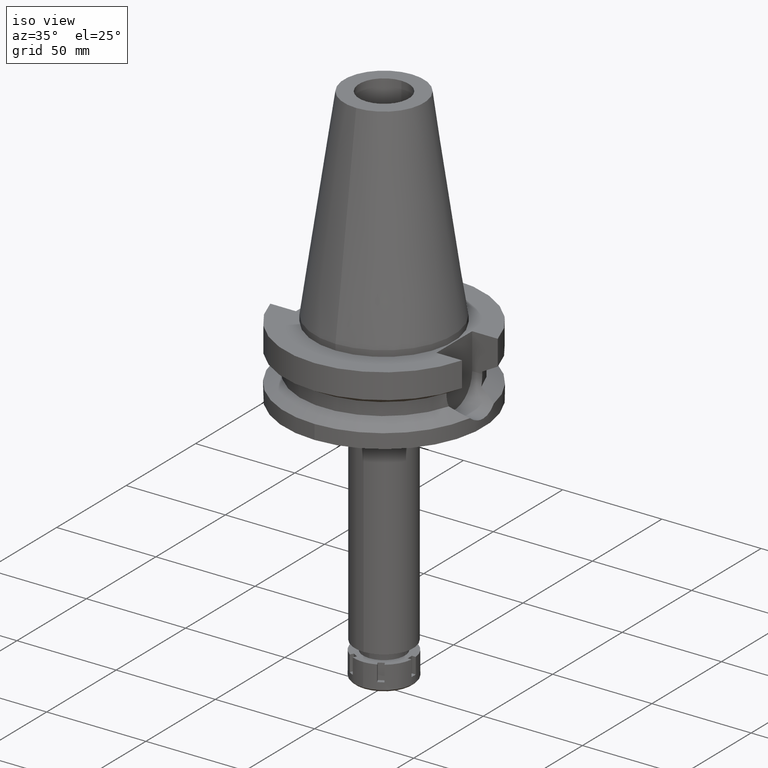
[diagram: clean part render]
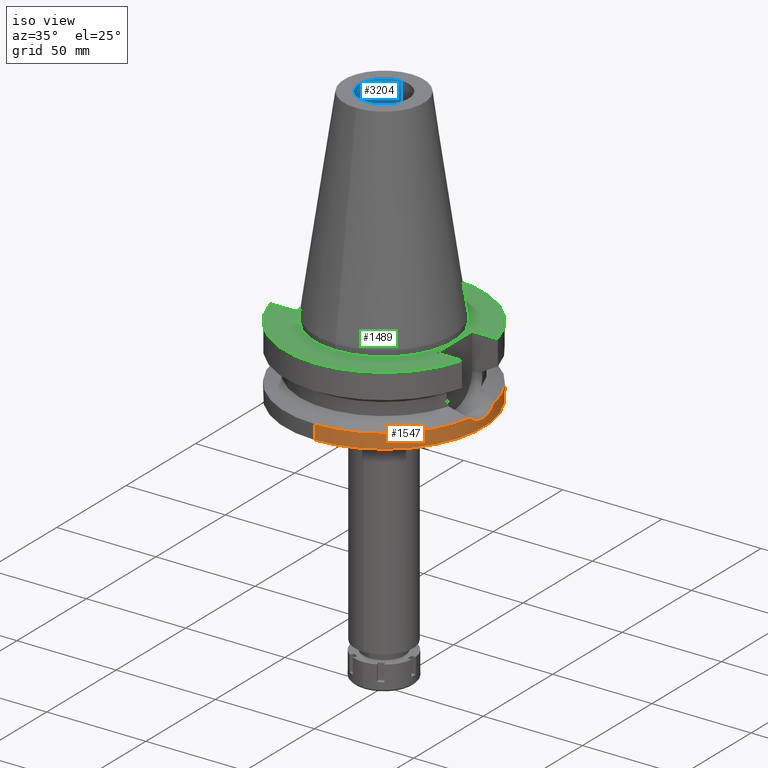
[diagram: same view with three faces highlighted in distinct colors, each labeled with its STEP entity id]
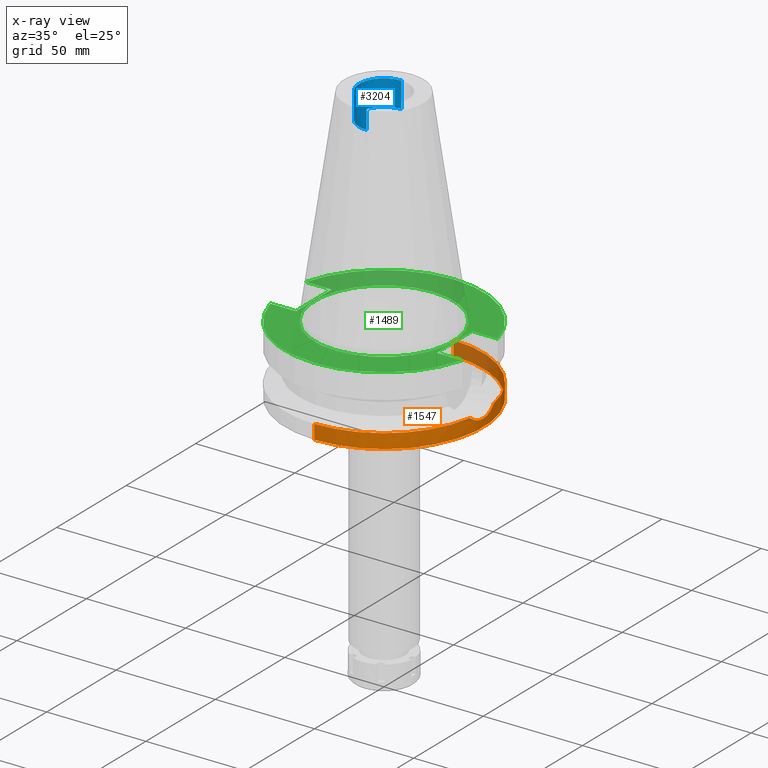
[diagram: x-ray of the same camera — body ghosted, the three highlighted faces saturated]
A machine part, iso view with three faces highlighted in distinct colors.
The next image is the same camera in x-ray (body ghosted, the three faces saturated) — at least one of them is partly hidden behind the body in this view.
Their STEP definitions:

[orange] entity #1547 — the highlighted cylindrical surface (partial cylindrical patch) has radius 50 mm, axis along (0, 0, -1).
#94 = CARTESIAN_POINT ( 'NONE',  ( 49.71771244292357039, -5.301720186252013356, -32.85659238557647654 ) ) ;
#116 = CARTESIAN_POINT ( 'NONE',  ( 49.91305551307290500, -3.031270825999984098, -33.66153124158559251 ) ) ;
#155 = CARTESIAN_POINT ( 'NONE',  ( 49.93043543702998477, 2.648726358274579251, -33.73005955329998784 ) ) ;
#178 = CARTESIAN_POINT ( 'NONE',  ( 49.73972721065732827, 5.127761864090552457, -32.94800215667580545 ) ) ;
#288 = ORIENTED_EDGE ( 'NONE', *, *, #2325, .T. ) ;
#289 = EDGE_CURVE ( 'NONE', #708, #1937, #3385, .T. ) ;
#294 = AXIS2_PLACEMENT_3D ( 'NONE', #701, #1258, #638 ) ;
#391 = CARTESIAN_POINT ( 'NONE',  ( 49.49360244400352116, 7.117060692954189527, -31.87766899477913896 ) ) ;
#439 = CARTESIAN_POINT ( 'NONE',  ( 49.79078946305826037, -4.569185635567727388, -33.16020745300443906 ) ) ;
#444 = CARTESIAN_POINT ( 'NONE',  ( 49.79347438492522571, 4.539752812130764426, -33.17136368397744661 ) ) ;
#527 = CARTESIAN_POINT ( 'NONE',  ( 49.26250064874000145, -8.556052234130000045, -30.73730776426999967 ) ) ;
#551 = EDGE_CURVE ( 'NONE', #708, #3455, #3193, .T. ) ;
#553 = CYLINDRICAL_SURFACE ( 'NONE', #983, 50.00000000000000000 ) ;
#576 = B_SPLINE_CURVE_WITH_KNOTS ( 'NONE', 3,
 ( #1602, #2950, #2706, #155, #954, #1285, #2082, #2443, #3232, #3530, #3009, #444, #1583, #2729, #178, #1302, #391, #3589, #1027 ),
 .UNSPECIFIED., .F., .F.,
 ( 4, 2, 2, 1, 1, 1, 1, 1, 2, 2, 2, 4 ),
 ( 0.0000000000000000000, 0.2500000000000198175, 0.3750000000000297540, 0.4375000000000344724, 0.4687500000000369149, 0.4843750000000381917, 0.4921875000000385803, 0.4960937500000385247, 0.4980468750000389688, 0.5000000000000394129, 0.7500000000000196509, 1.000000000000000000 ),
 .UNSPECIFIED. ) ;
#638 = DIRECTION ( 'NONE',  ( 0.0000000000000000000, 1.000000000000000000, 0.0000000000000000000 ) ) ;
#641 = CARTESIAN_POINT ( 'NONE',  ( 49.26250064874000145, -8.556052234130000045, -30.73730776426999967 ) ) ;
#655 = EDGE_CURVE ( 'NONE', #1737, #2283, #3272, .T. ) ;
#701 = CARTESIAN_POINT ( 'NONE',  ( 0.0000000000000000000, 0.0000000000000000000, -30.73730776426999967 ) ) ;
#708 = VERTEX_POINT ( 'NONE', #527 ) ;
#717 = DIRECTION ( 'NONE',  ( 0.0000000000000000000, 0.0000000000000000000, -1.000000000000000000 ) ) ;
#720 = CARTESIAN_POINT ( 'NONE',  ( 49.79052572488907202, -4.572062755264606260, -33.15911172846967503 ) ) ;
#790 = ORIENTED_EDGE ( 'NONE', *, *, #970, .T. ) ;
#807 = AXIS2_PLACEMENT_3D ( 'NONE', #3078, #3110, #3355 ) ;
#841 = ORIENTED_EDGE ( 'NONE', *, *, #551, .F. ) ;
#950 = CARTESIAN_POINT ( 'NONE',  ( 49.73403571962806780, -5.148397096191286160, -32.92466732353829428 ) ) ;
#954 = CARTESIAN_POINT ( 'NONE',  ( 49.90869642992999644, 3.032807478422463454, -33.64331436793084151 ) ) ;
#964 = CARTESIAN_POINT ( 'NONE',  ( 50.00000025974999573, 1.774451979625000049E-14, -34.00000114470000057 ) ) ;
#970 = EDGE_CURVE ( 'NONE', #1737, #1160, #3036, .T. ) ;
#982 = CARTESIAN_POINT ( 'NONE',  ( 49.77979861141895412, -4.687619707991414586, -33.11458520036079278 ) ) ;
#983 = AXIS2_PLACEMENT_3D ( 'NONE', #2841, #2287, #2896 ) ;
#1007 = CARTESIAN_POINT ( 'NONE',  ( 49.78849615496912406, -4.594160770977660846, -33.15068097425570670 ) ) ;
#1013 = CARTESIAN_POINT ( 'NONE',  ( 50.00000025974999573, 1.774451979625000049E-14, -34.00000114470000057 ) ) ;
#1027 = CARTESIAN_POINT ( 'NONE',  ( 49.26250064874000145, 8.556052234130000045, -30.73730776426999967 ) ) ;
#1105 = VECTOR ( 'NONE', #3488, 1000.000000000000000 ) ;
#1129 = ORIENTED_EDGE ( 'NONE', *, *, #655, .F. ) ;
#1153 = CARTESIAN_POINT ( 'NONE',  ( 49.75680721495889003, -4.924372199833143782, -33.01927248181322483 ) ) ;
#1160 = VERTEX_POINT ( 'NONE', #3287 ) ;
#1238 = VECTOR ( 'NONE', #3416, 1000.000000000000000 ) ;
#1258 = DIRECTION ( 'NONE',  ( 0.0000000000000000000, 0.0000000000000000000, -1.000000000000000000 ) ) ;
#1282 = CIRCLE ( 'NONE', #807, 50.00000000000000000 ) ;
#1285 = CARTESIAN_POINT ( 'NONE',  ( 49.86956621714999471, 3.608177968032164173, -33.48463145072798142 ) ) ;
#1302 = CARTESIAN_POINT ( 'NONE',  ( 49.66987082495349881, 5.762061219469008400, -32.66234491629879955 ) ) ;
#1506 = CARTESIAN_POINT ( 'NONE',  ( 49.38719230605794053, -7.838125007729566995, -31.37801139039975240 ) ) ;
#1544 = CARTESIAN_POINT ( 'NONE',  ( 0.0000000000000000000, 50.00000000000000000, -30.73730776426999967 ) ) ;
#1547 = ADVANCED_FACE ( 'NONE', ( #2266 ), #553, .T. ) ;
#1558 = CARTESIAN_POINT ( 'NONE',  ( 49.76776460769280419, -4.813848196673922608, -33.06469792036553201 ) ) ;
#1578 = CARTESIAN_POINT ( 'NONE',  ( 49.78562820799949407, -4.625197376495398416, -33.13877319686930889 ) ) ;
#1583 = CARTESIAN_POINT ( 'NONE',  ( 49.79239168047003972, 4.551645640503458878, -33.16686574698189816 ) ) ;
#1602 = CARTESIAN_POINT ( 'NONE',  ( 50.00000025974999573, 1.774451979625000049E-14, -34.00000114470000057 ) ) ;
#1691 = EDGE_LOOP ( 'NONE', ( #1951, #3407, #288, #1129, #790, #2940, #841 ) ) ;
#1737 = VERTEX_POINT ( 'NONE', #1544 ) ;
#1785 = CARTESIAN_POINT ( 'NONE',  ( 49.49360748629898410, -7.117022365436703524, -31.87769826661790518 ) ) ;
#1821 = CARTESIAN_POINT ( 'NONE',  ( 49.86088866506666051, -3.802344463858726709, -33.45151161024440256 ) ) ;
#1870 = CARTESIAN_POINT ( 'NONE',  ( 0.0000000000000000000, 50.00000000000000000, -38.00000000000000000 ) ) ;
#1937 = VERTEX_POINT ( 'NONE', #2743 ) ;
#1951 = ORIENTED_EDGE ( 'NONE', *, *, #289, .T. ) ;
#2082 = CARTESIAN_POINT ( 'NONE',  ( 49.84837068522751480, 3.895670753226831984, -33.39815263650996258 ) ) ;
#2086 = CARTESIAN_POINT ( 'NONE',  ( 0.0000000000000000000, -50.00000000000000000, -30.73730776426999967 ) ) ;
#2128 = CARTESIAN_POINT ( 'NONE',  ( 0.0000000000000000000, -50.00000000000000000, -38.00000000000000000 ) ) ;
#2266 = FACE_OUTER_BOUND ( 'NONE', #1691, .T. ) ;
#2283 = VERTEX_POINT ( 'NONE', #1870 ) ;
#2287 = DIRECTION ( 'NONE',  ( 0.0000000000000000000, 0.0000000000000000000, -1.000000000000000000 ) ) ;
#2325 = EDGE_CURVE ( 'NONE', #2629, #2283, #1282, .T. ) ;
#2379 = CARTESIAN_POINT ( 'NONE',  ( 49.98261131041458327, -1.500624885528581753, -33.93573978237721889 ) ) ;
#2443 = CARTESIAN_POINT ( 'NONE',  ( 49.82078931996937854, 4.230072290319100148, -33.28453423727673766 ) ) ;
#2451 = EDGE_CURVE ( 'NONE', #1937, #2629, #3506, .T. ) ;
#2580 = CARTESIAN_POINT ( 'NONE',  ( 49.62581554104523462, -6.100699782143618854, -32.46623685376827950 ) ) ;
#2629 = VERTEX_POINT ( 'NONE', #2128 ) ;
#2650 = CARTESIAN_POINT ( 'NONE',  ( 49.66531577335810965, -5.772453007793217239, -32.63570655790127972 ) ) ;
#2706 = CARTESIAN_POINT ( 'NONE',  ( 49.98260905406998234, 1.500665618325508266, -33.93573820490425419 ) ) ;
#2729 = CARTESIAN_POINT ( 'NONE',  ( 49.79170874925353729, 4.559128567783154118, -33.16402800634843828 ) ) ;
#2741 = CARTESIAN_POINT ( 'NONE',  ( 50.00000025974998863, -0.7410656244436363282, -33.99999999999998579 ) ) ;
#2743 = CARTESIAN_POINT ( 'NONE',  ( 0.0000000000000000000, -50.00000000000000000, -30.73730776426999967 ) ) ;
#2789 = AXIS2_PLACEMENT_3D ( 'NONE', #3266, #717, #3243 ) ;
#2833 = CARTESIAN_POINT ( 'NONE',  ( 0.0000000000000000000, 50.00000000000000000, -30.73730776426999967 ) ) ;
#2841 = CARTESIAN_POINT ( 'NONE',  ( 0.0000000000000000000, 2.630418859888999601E-14, 114.7900000000000063 ) ) ;
#2896 = DIRECTION ( 'NONE',  ( 0.0000000000000000000, -1.000000000000000000, 0.0000000000000000000 ) ) ;
#2940 = ORIENTED_EDGE ( 'NONE', *, *, #3186, .F. ) ;
#2950 = CARTESIAN_POINT ( 'NONE',  ( 50.00000025975000284, 0.7410749813100161454, -33.99999999999998579 ) ) ;
#3004 = CARTESIAN_POINT ( 'NONE',  ( 49.78971523553028078, -4.580896940909937598, -33.15574469001020930 ) ) ;
#3009 = CARTESIAN_POINT ( 'NONE',  ( 49.79509525718311380, 4.521911686831286303, -33.17809616900307645 ) ) ;
#3036 = CIRCLE ( 'NONE', #294, 50.00000000000000000 ) ;
#3078 = CARTESIAN_POINT ( 'NONE',  ( 0.0000000000000000000, 2.630418859888999601E-14, -38.00000000000000000 ) ) ;
#3110 = DIRECTION ( 'NONE',  ( 0.0000000000000000000, 0.0000000000000000000, 1.000000000000000000 ) ) ;
#3186 = EDGE_CURVE ( 'NONE', #3455, #1160, #576, .T. ) ;
#3193 = B_SPLINE_CURVE_WITH_KNOTS ( 'NONE', 3,
 ( #641, #1506, #1785, #2580, #2650, #94, #950, #1153, #1558, #982, #1578, #1007, #3004, #720, #439, #1821, #116, #2379, #2741, #964 ),
 .UNSPECIFIED., .F., .F.,
 ( 4, 2, 2, 2, 1, 1, 1, 1, 2, 2, 2, 4 ),
 ( 0.0000000000000000000, 0.2500000000000148770, 0.3750000000000223155, 0.4375000000000253686, 0.4687500000000265898, 0.4843750000000270894, 0.4921875000000273670, 0.4960937500000274780, 0.4980468750000278666, 0.5000000000000281997, 0.7500000000000140998, 1.000000000000000000 ),
 .UNSPECIFIED. ) ;
#3232 = CARTESIAN_POINT ( 'NONE',  ( 49.80628532616984216, 4.396934166487986850, -33.22451764732728918 ) ) ;
#3243 = DIRECTION ( 'NONE',  ( 0.9852500129747439050, -0.1711210446826074982, 0.0000000000000000000 ) ) ;
#3266 = CARTESIAN_POINT ( 'NONE',  ( 0.0000000000000000000, 0.0000000000000000000, -30.73730776426999967 ) ) ;
#3272 = LINE ( 'NONE', #2833, #1238 ) ;
#3287 = CARTESIAN_POINT ( 'NONE',  ( 49.26250064874000145, 8.556052234130000045, -30.73730776426999967 ) ) ;
#3355 = DIRECTION ( 'NONE',  ( 0.0000000000000000000, -1.000000000000000000, 0.0000000000000000000 ) ) ;
#3385 = CIRCLE ( 'NONE', #2789, 50.00000000000000000 ) ;
#3407 = ORIENTED_EDGE ( 'NONE', *, *, #2451, .T. ) ;
#3416 = DIRECTION ( 'NONE',  ( 0.0000000000000000000, 2.152361642122000014E-14, -1.000000000000000000 ) ) ;
#3455 = VERTEX_POINT ( 'NONE', #1013 ) ;
#3488 = DIRECTION ( 'NONE',  ( 0.0000000000000000000, -2.250196262218999978E-14, -1.000000000000000000 ) ) ;
#3506 = LINE ( 'NONE', #2086, #1105 ) ;
#3530 = CARTESIAN_POINT ( 'NONE',  ( 49.79885500147747024, 4.480269389548984904, -33.19370440295170255 ) ) ;
#3589 = CARTESIAN_POINT ( 'NONE',  ( 49.38719044875733744, 7.838135701349809636, -31.37800184703518624 ) ) ;

[blue] entity #3204 — the highlighted cylindrical surface (edge-blend (fillet) strip) has radius 12.5 mm, axis along (0, 0, -1).
#154 = EDGE_CURVE ( 'NONE', #2496, #2506, #1108, .T. ) ;
#205 = CARTESIAN_POINT ( 'NONE',  ( 0.0000000000000000000, -12.50000000000000000, 88.79999999999999716 ) ) ;
#266 = ORIENTED_EDGE ( 'NONE', *, *, #154, .T. ) ;
#440 = DIRECTION ( 'NONE',  ( 0.0000000000000000000, 0.0000000000000000000, -1.000000000000000000 ) ) ;
#521 = ORIENTED_EDGE ( 'NONE', *, *, #1076, .T. ) ;
#608 = EDGE_LOOP ( 'NONE', ( #266, #1591, #521, #2581 ) ) ;
#664 = CARTESIAN_POINT ( 'NONE',  ( 0.0000000000000000000, -12.50000000000000000, 88.79999999999999716 ) ) ;
#771 = DIRECTION ( 'NONE',  ( 0.0000000000000000000, 0.0000000000000000000, 1.000000000000000000 ) ) ;
#1041 = CARTESIAN_POINT ( 'NONE',  ( 0.0000000000000000000, 2.630418859888999601E-14, 88.79999999999999716 ) ) ;
#1076 = EDGE_CURVE ( 'NONE', #3202, #2528, #3614, .T. ) ;
#1108 = CIRCLE ( 'NONE', #2668, 12.50000000000000000 ) ;
#1186 = CARTESIAN_POINT ( 'NONE',  ( 0.0000000000000000000, -12.50000000000000000, 101.7999999999999972 ) ) ;
#1191 = CARTESIAN_POINT ( 'NONE',  ( 0.0000000000000000000, 2.630418859888999601E-14, 101.7999999999999972 ) ) ;
#1232 = VECTOR ( 'NONE', #771, 1000.000000000000000 ) ;
#1249 = CYLINDRICAL_SURFACE ( 'NONE', #2960, 12.50000000000000000 ) ;
#1308 = CARTESIAN_POINT ( 'NONE',  ( 0.0000000000000000000, 12.50000000000000000, 88.79999999999999716 ) ) ;
#1371 = DIRECTION ( 'NONE',  ( 0.0000000000000000000, -1.000000000000000000, 0.0000000000000000000 ) ) ;
#1531 = FACE_OUTER_BOUND ( 'NONE', #608, .T. ) ;
#1591 = ORIENTED_EDGE ( 'NONE', *, *, #2708, .F. ) ;
#1616 = CARTESIAN_POINT ( 'NONE',  ( 0.0000000000000000000, 2.630418859888999601E-14, 114.7900000000000063 ) ) ;
#1867 = LINE ( 'NONE', #1308, #1885 ) ;
#1885 = VECTOR ( 'NONE', #2449, 1000.000000000000000 ) ;
#2058 = DIRECTION ( 'NONE',  ( 0.0000000000000000000, 0.0000000000000000000, 1.000000000000000000 ) ) ;
#2449 = DIRECTION ( 'NONE',  ( 0.0000000000000000000, 0.0000000000000000000, 1.000000000000000000 ) ) ;
#2466 = DIRECTION ( 'NONE',  ( 0.0000000000000000000, -1.000000000000000000, 0.0000000000000000000 ) ) ;
#2496 = VERTEX_POINT ( 'NONE', #2611 ) ;
#2506 = VERTEX_POINT ( 'NONE', #1186 ) ;
#2528 = VERTEX_POINT ( 'NONE', #3015 ) ;
#2581 = ORIENTED_EDGE ( 'NONE', *, *, #2664, .T. ) ;
#2611 = CARTESIAN_POINT ( 'NONE',  ( 0.0000000000000000000, 12.50000000000000000, 101.7999999999999972 ) ) ;
#2664 = EDGE_CURVE ( 'NONE', #2528, #2496, #1867, .T. ) ;
#2668 = AXIS2_PLACEMENT_3D ( 'NONE', #1191, #2058, #3209 ) ;
#2708 = EDGE_CURVE ( 'NONE', #3202, #2506, #2792, .T. ) ;
#2792 = LINE ( 'NONE', #205, #1232 ) ;
#2960 = AXIS2_PLACEMENT_3D ( 'NONE', #1616, #3608, #2466 ) ;
#3015 = CARTESIAN_POINT ( 'NONE',  ( 0.0000000000000000000, 12.50000000000000000, 88.79999999999999716 ) ) ;
#3202 = VERTEX_POINT ( 'NONE', #664 ) ;
#3204 = ADVANCED_FACE ( 'NONE', ( #1531 ), #1249, .F. ) ;
#3209 = DIRECTION ( 'NONE',  ( 0.0000000000000000000, 1.000000000000000000, 0.0000000000000000000 ) ) ;
#3252 = AXIS2_PLACEMENT_3D ( 'NONE', #1041, #440, #1371 ) ;
#3608 = DIRECTION ( 'NONE',  ( 0.0000000000000000000, 0.0000000000000000000, -1.000000000000000000 ) ) ;
#3614 = CIRCLE ( 'NONE', #3252, 12.50000000000000000 ) ;

[green] entity #1489 — the highlighted planar face has unit normal (0, 0, -1).
#13 = DIRECTION ( 'NONE',  ( -1.000000000000000000, 0.0000000000000000000, 0.0000000000000000000 ) ) ;
#30 = EDGE_CURVE ( 'NONE', #1956, #1899, #2003, .T. ) ;
#151 = CARTESIAN_POINT ( 'NONE',  ( 0.0000000000000000000, 2.630418859888999601E-14, -3.000000000000000000 ) ) ;
#163 = CARTESIAN_POINT ( 'NONE',  ( -48.32057015392000210, 12.84999999999999964, -3.000000000000000000 ) ) ;
#186 = CARTESIAN_POINT ( 'NONE',  ( 35.39999999999999858, 12.84999999999999964, -3.000000000000000000 ) ) ;
#190 = DIRECTION ( 'NONE',  ( 0.0000000000000000000, 0.0000000000000000000, -1.000000000000000000 ) ) ;
#324 = CARTESIAN_POINT ( 'NONE',  ( -48.32057015392000210, -12.84999999999999964, -3.000000000000000000 ) ) ;
#341 = VECTOR ( 'NONE', #3470, 1000.000000000000000 ) ;
#377 = DIRECTION ( 'NONE',  ( 1.000000000000000000, 0.0000000000000000000, 0.0000000000000000000 ) ) ;
#502 = ORIENTED_EDGE ( 'NONE', *, *, #2425, .T. ) ;
#508 = DIRECTION ( 'NONE',  ( 0.0000000000000000000, -1.000000000000000000, 0.0000000000000000000 ) ) ;
#518 = FACE_BOUND ( 'NONE', #1102, .T. ) ;
#520 = ORIENTED_EDGE ( 'NONE', *, *, #2290, .F. ) ;
#547 = VERTEX_POINT ( 'NONE', #1750 ) ;
#564 = EDGE_CURVE ( 'NONE', #547, #1561, #2182, .T. ) ;
#613 = VERTEX_POINT ( 'NONE', #1876 ) ;
#675 = CIRCLE ( 'NONE', #2220, 34.92499999999999716 ) ;
#784 = ORIENTED_EDGE ( 'NONE', *, *, #2076, .F. ) ;
#918 = CARTESIAN_POINT ( 'NONE',  ( 35.39999999999999858, 12.84999999999999964, -3.000000000000000000 ) ) ;
#928 = CARTESIAN_POINT ( 'NONE',  ( 0.0000000000000000000, 2.630418859888999601E-14, -3.000000000000000000 ) ) ;
#941 = LINE ( 'NONE', #2591, #2720 ) ;
#942 = AXIS2_PLACEMENT_3D ( 'NONE', #928, #2682, #2060 ) ;
#948 = EDGE_CURVE ( 'NONE', #2593, #613, #2558, .T. ) ;
#1037 = DIRECTION ( 'NONE',  ( 0.0000000000000000000, -1.000000000000000000, 0.0000000000000000000 ) ) ;
#1097 = DIRECTION ( 'NONE',  ( 0.0000000000000000000, -1.000000000000000000, 0.0000000000000000000 ) ) ;
#1102 = EDGE_LOOP ( 'NONE', ( #1218, #1383 ) ) ;
#1218 = ORIENTED_EDGE ( 'NONE', *, *, #1315, .F. ) ;
#1315 = EDGE_CURVE ( 'NONE', #1899, #1956, #675, .T. ) ;
#1323 = ORIENTED_EDGE ( 'NONE', *, *, #3277, .F. ) ;
#1383 = ORIENTED_EDGE ( 'NONE', *, *, #30, .F. ) ;
#1389 = DIRECTION ( 'NONE',  ( 0.0000000000000000000, 0.0000000000000000000, 1.000000000000000000 ) ) ;
#1440 = ORIENTED_EDGE ( 'NONE', *, *, #2577, .F. ) ;
#1489 = ADVANCED_FACE ( 'NONE', ( #2491, #518 ), #3664, .F. ) ;
#1530 = AXIS2_PLACEMENT_3D ( 'NONE', #151, #190, #2969 ) ;
#1535 = CARTESIAN_POINT ( 'NONE',  ( 0.0000000000000000000, 2.630418859888999601E-14, -3.000000000000000000 ) ) ;
#1561 = VERTEX_POINT ( 'NONE', #324 ) ;
#1568 = DIRECTION ( 'NONE',  ( 0.0000000000000000000, 0.0000000000000000000, 1.000000000000000000 ) ) ;
#1585 = ORIENTED_EDGE ( 'NONE', *, *, #948, .F. ) ;
#1586 = VECTOR ( 'NONE', #377, 1000.000000000000000 ) ;
#1601 = CARTESIAN_POINT ( 'NONE',  ( 0.0000000000000000000, 34.92499999999999716, -3.000000000000000000 ) ) ;
#1655 = EDGE_LOOP ( 'NONE', ( #502, #3521, #1323, #520, #2885, #1585, #784, #1440 ) ) ;
#1750 = CARTESIAN_POINT ( 'NONE',  ( 48.32057015392000210, -12.84999999999999964, -3.000000000000000000 ) ) ;
#1789 = VERTEX_POINT ( 'NONE', #2424 ) ;
#1876 = CARTESIAN_POINT ( 'NONE',  ( 48.32057015392000210, 12.84999999999999964, -3.000000000000000000 ) ) ;
#1883 = CARTESIAN_POINT ( 'NONE',  ( 35.39999999999999858, -12.84999999999999964, -3.000000000000000000 ) ) ;
#1899 = VERTEX_POINT ( 'NONE', #1601 ) ;
#1954 = VERTEX_POINT ( 'NONE', #1883 ) ;
#1956 = VERTEX_POINT ( 'NONE', #3050 ) ;
#2002 = VERTEX_POINT ( 'NONE', #3660 ) ;
#2003 = CIRCLE ( 'NONE', #3026, 34.92499999999999716 ) ;
#2060 = DIRECTION ( 'NONE',  ( 0.0000000000000000000, 1.000000000000000000, 0.0000000000000000000 ) ) ;
#2076 = EDGE_CURVE ( 'NONE', #2262, #2593, #3441, .T. ) ;
#2182 = CIRCLE ( 'NONE', #1530, 50.00000000000000000 ) ;
#2220 = AXIS2_PLACEMENT_3D ( 'NONE', #1535, #1568, #2385 ) ;
#2229 = CARTESIAN_POINT ( 'NONE',  ( 0.0000000000000000000, 1.187907395172999884E-14, -3.000000000000000000 ) ) ;
#2262 = VERTEX_POINT ( 'NONE', #2998 ) ;
#2270 = LINE ( 'NONE', #3220, #1586 ) ;
#2288 = LINE ( 'NONE', #918, #341 ) ;
#2290 = EDGE_CURVE ( 'NONE', #2002, #1954, #3018, .T. ) ;
#2313 = DIRECTION ( 'NONE',  ( -1.000000000000000000, 0.0000000000000000000, 0.0000000000000000000 ) ) ;
#2385 = DIRECTION ( 'NONE',  ( 0.0000000000000000000, 1.000000000000000000, 0.0000000000000000000 ) ) ;
#2405 = CARTESIAN_POINT ( 'NONE',  ( -35.39999999999999858, -12.84999999999999964, -3.000000000000000000 ) ) ;
#2413 = VECTOR ( 'NONE', #1037, 1000.000000000000000 ) ;
#2424 = CARTESIAN_POINT ( 'NONE',  ( -35.39999999999999858, -12.84999999999999964, -3.000000000000000000 ) ) ;
#2425 = EDGE_CURVE ( 'NONE', #1789, #1561, #941, .T. ) ;
#2491 = FACE_OUTER_BOUND ( 'NONE', #1655, .T. ) ;
#2549 = VECTOR ( 'NONE', #3556, 1000.000000000000000 ) ;
#2558 = CIRCLE ( 'NONE', #942, 50.00000000000000000 ) ;
#2577 = EDGE_CURVE ( 'NONE', #1789, #2262, #3535, .T. ) ;
#2591 = CARTESIAN_POINT ( 'NONE',  ( -35.39999999999999858, -12.84999999999999964, -3.000000000000000000 ) ) ;
#2593 = VERTEX_POINT ( 'NONE', #163 ) ;
#2682 = DIRECTION ( 'NONE',  ( 0.0000000000000000000, 0.0000000000000000000, -1.000000000000000000 ) ) ;
#2720 = VECTOR ( 'NONE', #2313, 1000.000000000000000 ) ;
#2779 = VECTOR ( 'NONE', #13, 1000.000000000000000 ) ;
#2873 = CARTESIAN_POINT ( 'NONE',  ( -35.39999999999999858, 12.84999999999999964, -3.000000000000000000 ) ) ;
#2885 = ORIENTED_EDGE ( 'NONE', *, *, #3000, .T. ) ;
#2969 = DIRECTION ( 'NONE',  ( 0.0000000000000000000, -1.000000000000000000, 0.0000000000000000000 ) ) ;
#2998 = CARTESIAN_POINT ( 'NONE',  ( -35.39999999999999858, 12.84999999999999964, -3.000000000000000000 ) ) ;
#3000 = EDGE_CURVE ( 'NONE', #2002, #613, #2288, .T. ) ;
#3018 = LINE ( 'NONE', #186, #2413 ) ;
#3026 = AXIS2_PLACEMENT_3D ( 'NONE', #3640, #1389, #508 ) ;
#3050 = CARTESIAN_POINT ( 'NONE',  ( 0.0000000000000000000, -34.92499999999999716, -3.000000000000000000 ) ) ;
#3129 = AXIS2_PLACEMENT_3D ( 'NONE', #2229, #3631, #1097 ) ;
#3220 = CARTESIAN_POINT ( 'NONE',  ( 35.39999999999999858, -12.84999999999999964, -3.000000000000000000 ) ) ;
#3277 = EDGE_CURVE ( 'NONE', #1954, #547, #2270, .T. ) ;
#3441 = LINE ( 'NONE', #2873, #2779 ) ;
#3470 = DIRECTION ( 'NONE',  ( 1.000000000000000000, 0.0000000000000000000, 0.0000000000000000000 ) ) ;
#3521 = ORIENTED_EDGE ( 'NONE', *, *, #564, .F. ) ;
#3535 = LINE ( 'NONE', #2405, #2549 ) ;
#3556 = DIRECTION ( 'NONE',  ( 0.0000000000000000000, 1.000000000000000000, 0.0000000000000000000 ) ) ;
#3631 = DIRECTION ( 'NONE',  ( 0.0000000000000000000, 0.0000000000000000000, -1.000000000000000000 ) ) ;
#3640 = CARTESIAN_POINT ( 'NONE',  ( 0.0000000000000000000, 2.630418859888999601E-14, -3.000000000000000000 ) ) ;
#3660 = CARTESIAN_POINT ( 'NONE',  ( 35.39999999999999858, 12.84999999999999964, -3.000000000000000000 ) ) ;
#3664 = PLANE ( 'NONE',  #3129 ) ;